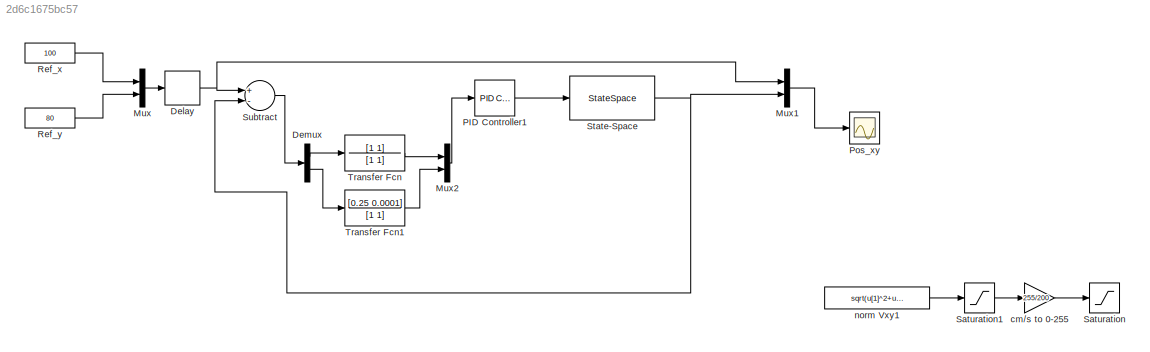
MODEL slx_2d6c1675bc57
KIND model
CONFIG AbsTol = auto
CONFIG EnableMultiTasking = off
CONFIG FixedStep = auto
CONFIG MaxStep = auto
CONFIG MinStep = auto
CONFIG RelTol = 1e-3
CONFIG SampleTimeConstraint = Unconstrained
CONFIG Solver = VariableStepAuto
CONFIG SolverName = VariableStepAuto
CONFIG StartTime = 0.0
CONFIG StopTime = 30
BLOCK [Delay] Delay
  DelayLength = 10
  InputPortMap = u0
  Ports = [1, 1]
BLOCK [Demux] Demux
  DisplayOption = bar
  Outputs = 2
  Ports = [1, 2]
BLOCK [Mux] Mux
  DisplayOption = bar
  Inputs = 2
  Ports = [2, 1]
BLOCK [Mux] Mux1
  DisplayOption = bar
  Inputs = 2
  Ports = [2, 1]
BLOCK [Mux] Mux2
  DisplayOption = bar
  Inputs = 2
  Ports = [2, 1]
BLOCK [Reference] PID Controller1  REF=simulink/Continuous/PID Controller
  Ports = [1, 1]
  SourceBlock = simulink/Continuous/PID Controller
  SourceProductBaseCode = SL
  SourceProductName = Simulink
  SourceType = PID 1dof
BLOCK [Scope] Pos_xy
  NumInputPorts = 1
  Ports = [1]
  ScopeSpecificationString = Simulink.scopes.TimeScopeBlockCfg('CurrentConfiguration', extmgr.ConfigurationSet(extmgr.Configuration('Core','General UI',true),extmgr.Configuration('Core','Source UI',true),extmgr.Configuration('Sources','WiredSimulink',true,'DataLogging',true,'DataLoggingVariableName','pos','DataLoggingSaveFormat','Array','SampleTime','0.1'),extmgr.Configuration('Visuals','Time Domain',true,'SerializedDisplays'...<+1533ch>
BLOCK [Constant] Ref_x
  Value = 100
BLOCK [Constant] Ref_y
  Value = 80
BLOCK [Saturate] Saturation
  Commented = on
  InputPortMap = u0
  LowerLimit = 0
  Ports = [1, 1]
  UpperLimit = 255
BLOCK [Saturate] Saturation1
  Commented = on
  InputPortMap = u0
  LowerLimit = -20
  Ports = [1, 1]
  UpperLimit = 20
BLOCK [StateSpace] State-Space
  A = [0 0 1 0;0 0 0 1;0 0 0 0;0 0 0 0;]
  B = [0 0;0 0;2.22 0;0 2.22]
  C = [1 0 0 0;0 1 0 0]
  D = [0 0;0 0]
  Ports = [1, 1]
  X0 = 0
BLOCK [Sum] Subtract
  InputSameDT = off
  Inputs = +-
  OutDataTypeStr = Inherit: Inherit via internal rule
  Ports = [2, 1]
  SaturateOnIntegerOverflow = off
BLOCK [TransferFcn] Transfer Fcn
  Denominator = [1 1]
  Numerator = [1 1]
BLOCK [TransferFcn] Transfer Fcn1
  Denominator = [1 1]
  Numerator = [0.25 0.0001]
BLOCK [Gain] cm//s to 0-255
  Commented = on
  Gain = 255/200
BLOCK [Fcn] norm Vxy1
  Commented = on
  Expr = sqrt(u[1]^2+u[2]^2)
NET Delay:1 -> Mux1:1, Subtract:1
LINE Demux:1 -> Transfer Fcn:1
LINE Demux:2 -> Transfer Fcn1:1
LINE Mux1:1 -> Pos_xy:1
LINE Mux2:1 -> PID Controller1:1
LINE Mux:1 -> Delay:1
LINE PID Controller1:1 -> State-Space:1
LINE Ref_x:1 -> Mux:1
LINE Ref_y:1 -> Mux:2
LINE Saturation1:1 -> cm//s to 0-255:1
NET State-Space:1 -> Mux1:2, Subtract:2
LINE Subtract:1 -> Demux:1
LINE Transfer Fcn1:1 -> Mux2:2
LINE Transfer Fcn:1 -> Mux2:1
LINE cm//s to 0-255:1 -> Saturation:1
LINE norm Vxy1:1 -> Saturation1:1
note: NET lines group one-source signal fan-out (src -> all destinations, sorted); 1:1 wires keep LINE
